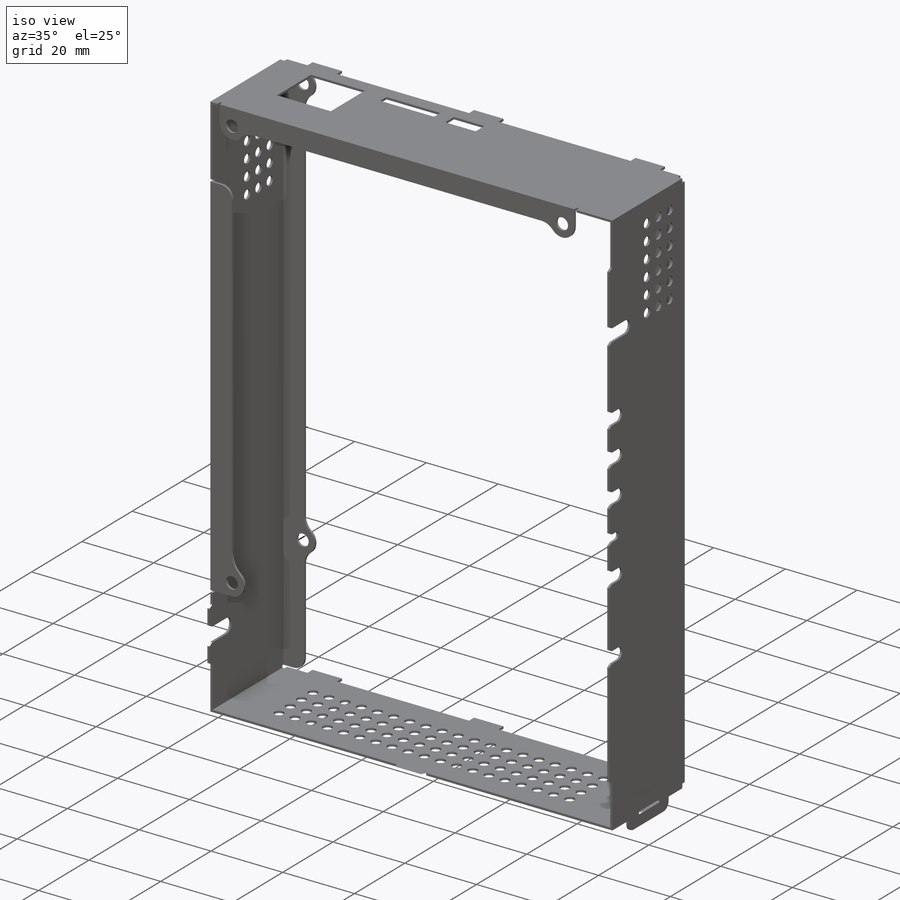
[diagram: iso view]
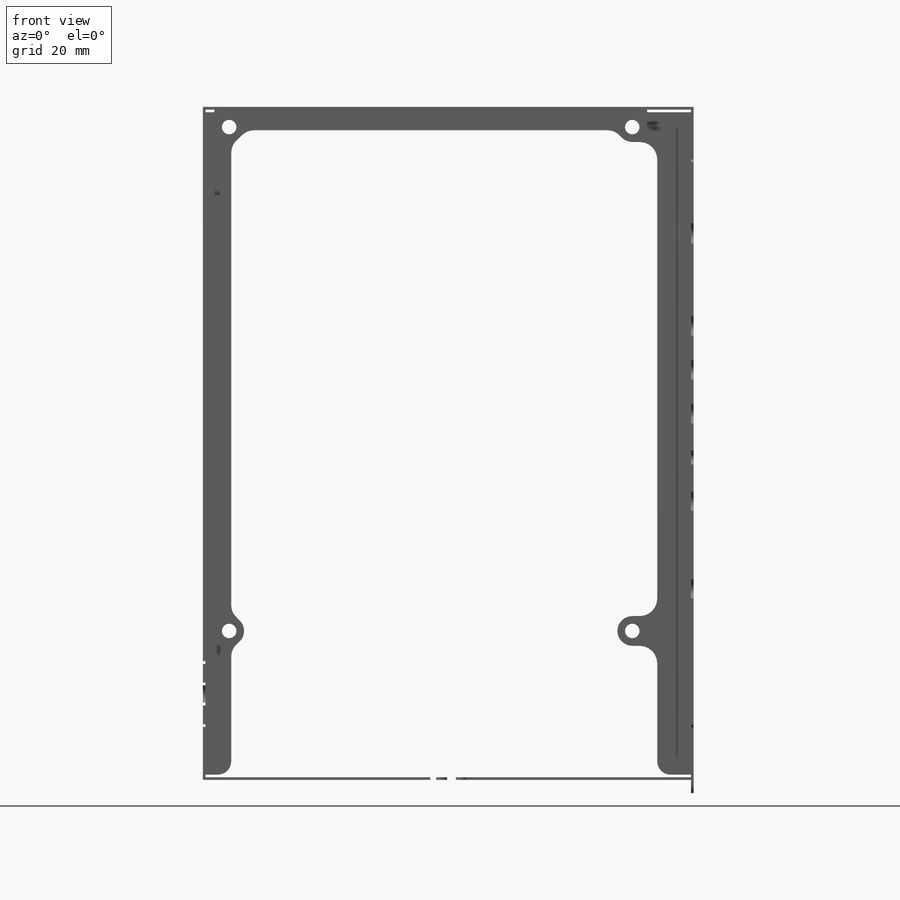
[diagram: front view]
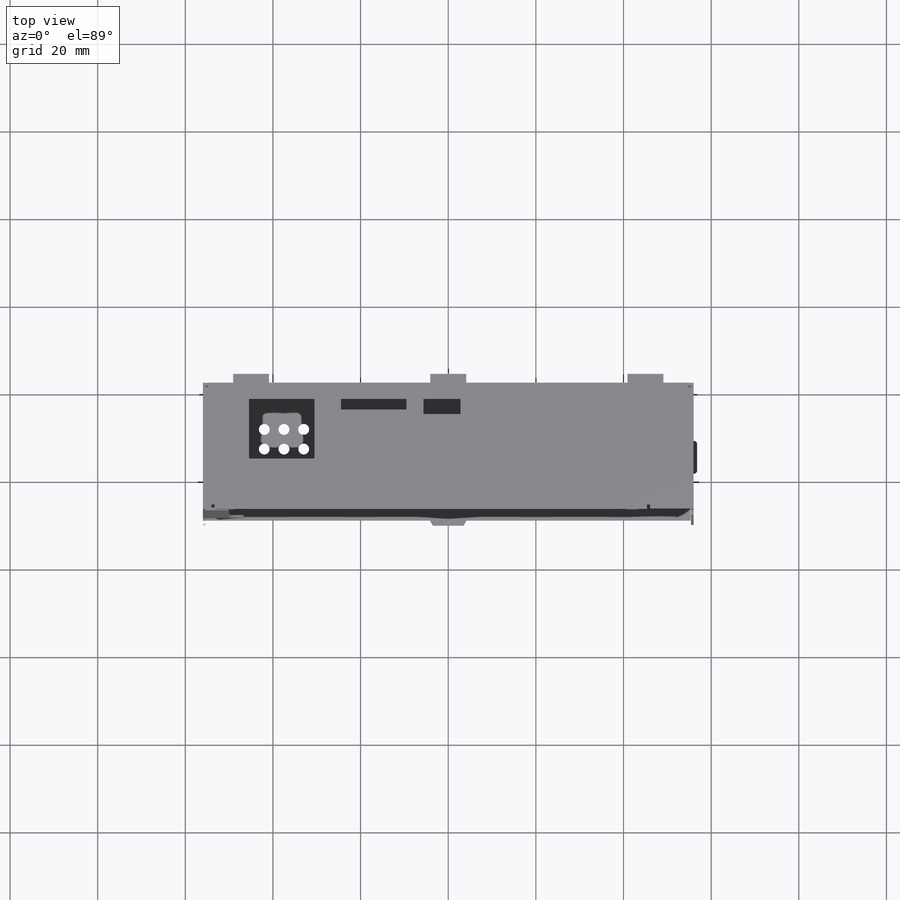
[diagram: top view]
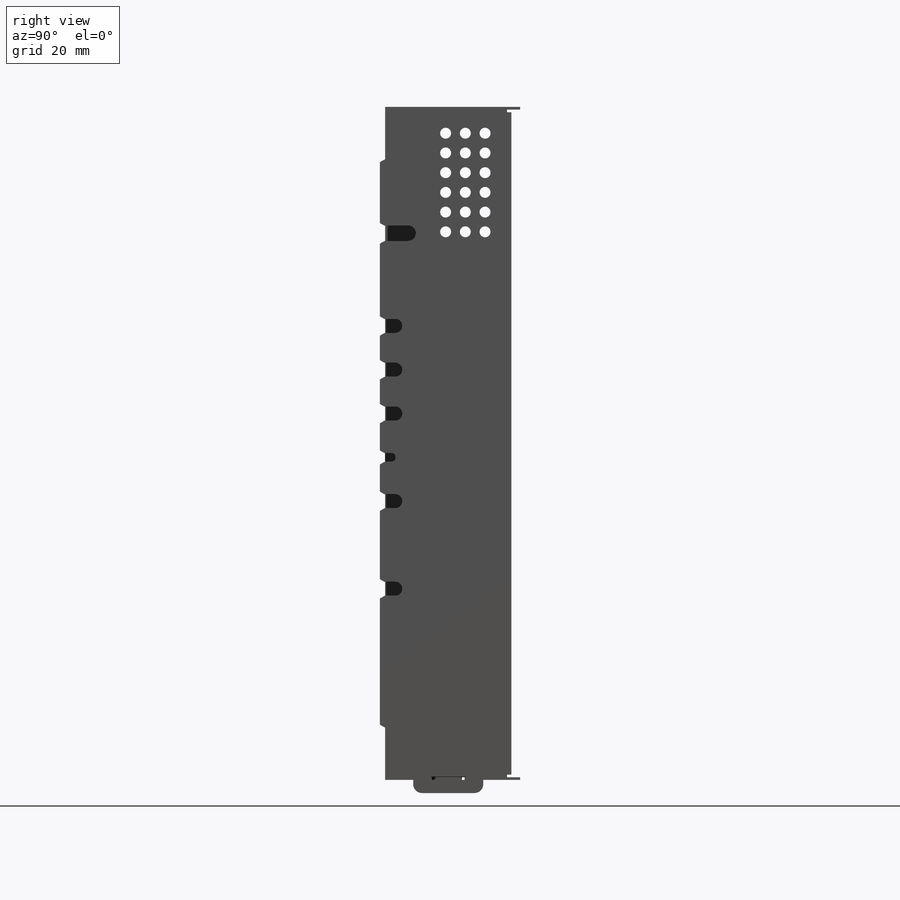
[diagram: right view]
SOLIDWORKS PART (.sldprt)
format: sldprt  version: not decoded by parser v0  size: 3,228,672 bytes
history: native  units: mm
features: sketch x27, cut_extrude x11, extrude x8, fillet x3, sheet_metal_op x3, chamfer x2, material x1, mirror x1 + 10 further entries (+13 scaffold rows collapsed; 3 parser-record rows omitted)
feature tree (82):
  scaffold x13  (default folders/planes/origin — collapsed)
  material  "Material <not specified>"
  "Cut-List-Item2"
  "Cut-List-Item3"
  "Cut-List-Item4"
  sketch  "Sketch1"  dims[D2=152.4mm D3=112.0mm D1=0.6mm]
  extrude  "Boss-Extrude1"  Depth=30mm
  sketch  "Sketch2"  dims[D1=2.0mm D2=8.2mm D3=11.0mm]
  extrude  "Boss-Extrude2"  Depth=0.6mm
  sketch  "Sketch3"  dims[c1.D6=~3.300647mm c1.D4=3.3mm c1.D7=4.0mm c1.D8=4.0mm c1.D9=3.0mm c1.D1=6.0mm c1.D2=4.6mm c1.D3=0.6mm c2.D4=10.0mm c2.D5=92.0mm c2.D3=0.6mm c2.D6=115.0mm c2.D10=0.6mm]
  extrude  "Boss-Extrude3"  Depth=0.6mm
  mirror  "Mirror1"
  sketch  "Sketch4"  dims[D1=15.0mm D2=15.0mm D3=8.5mm D4=3.7mm D5=13.6mm D6=2.5mm D7=3.5mm D8=10.5mm D9=31.5mm D10=50.3mm]
  cut_extrude  "Cut-Extrude1"  [1 undecoded]
  sketch  "Sketch5"  dims[c1.D3=7.0mm c1.D4=1.6mm c1.D6=1.75mm c1.D11=1.0mm c1.D12=5.2mm c1.D2=22.0mm c1.D5=50.0mm c2.D2=20.0mm c2.D7=28.85mm c2.D8=8.2mm c2.D9=10.0mm c2.D10=20.0mm c2.D11=3.0mm c3.D10=20.0mm c3.D1=4.0]
  cut_extrude  "Cut-Extrude2"  [1 undecoded]
  sketch  "Sketch6"  dims[D1=12.0mm D2=15.0mm D3=141.5mm]
  cut_extrude  "Cut-Extrude3"  Depth=1.2mm
  sketch  "Sketch7"  dims[D1=0.05mm]
  cut_extrude  "Cut-Extrude4"  [1 undecoded]
  sketch  "Sketch9"  dims[D1=4.0mm D2=3.0mm D3=3.0mm]
  extrude  "Boss-Extrude4"  Depth=0.6mm
  sketch  "Sketch10"  dims[D1=2.0mm D2=8.7mm]
  cut_extrude  "Cut-Extrude5"  [1 undecoded]
  sketch  "Sketch11"  dims[D1=2.5mm D2=8.0mm D3=14.0mm D4=19.0 D5=4.0]
  cut_extrude  "Cut-Extrude6"  [1 undecoded]
  sketch  "Sketch12"  dims[D1=2.5mm D2=6.0mm D3=6.0mm D4=3.0 D5=6.0]
  cut_extrude  "Cut-Extrude7"  [1 undecoded]
  sketch  "Sketch27"
  cut_extrude  "Cut-Extrude8"  Depth=1mm
  sketch  "Sketch28"
  cut_extrude  "Cut-Extrude9"  Depth=1mm
  chamfer  "Chamfer1"  Distance=0.6mm Angle=60deg
  sketch  "Sketch29"  dims[D1=3.0mm D2=16.0mm]
  extrude  "Boss-Extrude5"  [1 undecoded]
  fillet  "Fillet1"  Radius=2mm
  sketch  "Sketch30"  dims[D1=0.7mm D2=8.0mm]
  cut_extrude  "Cut-Extrude10"  [1 undecoded]
  sketch  "Sketch31"  dims[D1=7.5mm D2=0.8mm D3=0.7mm]
  extrude  "Boss-Extrude6"  [1 undecoded]
  sketch  "Sketch32"  dims[D1=0.6mm]
  extrude  "Boss-Extrude7"  Depth=0.6mm
  fillet  "Fillet2"  Radius=0.2mm
  sketch  "Sketch36"
  cut_extrude  "Cut-Extrude12"  Depth=0.3mm
  fillet  "Fillet3"  Radius=0.8mm
  sketch  "Sketch37"
  extrude  "Boss-Extrude8"  [1 undecoded]
  chamfer  "Chamfer2"  Distance=0.6mm Angle=60deg SharpBend9=0 SharpBend10=0 SharpBend11=0 SharpBend13=0 SharpBend14=0 SharpBend3=0
  sketch  "Bend-Lines11"
  sketch  "Bounding-Box11"
  sheet_metal_op  "Sheet-Metal(21)"
  "Flat-Pattern(21)"
  sketch  "Bend-Lines12"
  sketch  "Bounding-Box12"
  "Flatten-<SharpBend9>1"
  parser-record x3  (decoder bookkeeping rows leaked as tree rows — omitted from the tree; the rows remain in map.json)
  sheet_metal_op  "Sheet-Metal(22)"
  sketch  "Bend-Lines13"
  sketch  "Bounding-Box13"
  "Flatten-<SharpBend10>1"
  "Flatten-<SharpBend11>1"
  sheet_metal_op  "Sheet-Metal(23)"
  sketch  "Bend-Lines14"
  sketch  "Bounding-Box14"
  "Flatten-<SharpBend13>1"
  "Flatten-<SharpBend14>1"
  "Flatten-<SharpBend3>1"
decode coverage: 29 of 55 modeling features carry decoded parameters; 10 rows unclassified (native names shown)
note: ~ marks probable driven/reference dimensions
note: 10 parameter values undecoded
summary: no parameter record found for 10 features
note: suppression state not decoded; provenance and decode notes live in map.json
